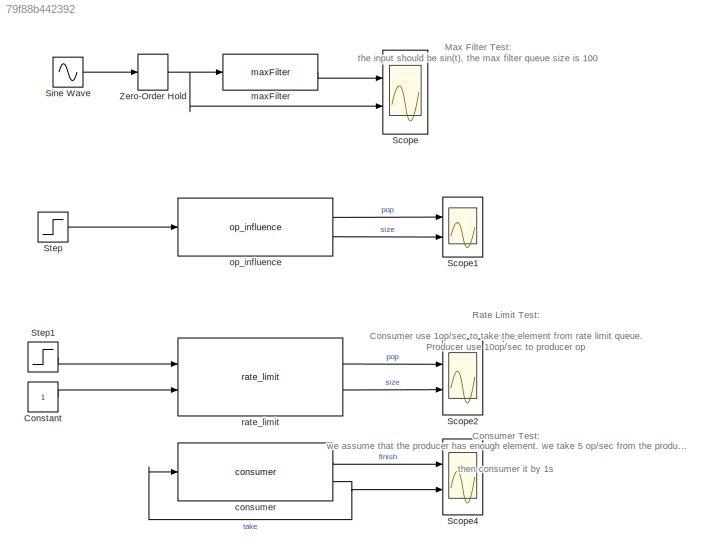
MODEL slx_79f88b442392
KIND model
CONFIG AbsTol = auto
CONFIG EnableMultiTasking = off
CONFIG FixedStep = 0.1
CONFIG MaxStep = auto
CONFIG MinStep = auto
CONFIG RelTol = 1e-3
CONFIG SampleTimeConstraint = Unconstrained
CONFIG SolverName = FixedStepDiscrete
CONFIG StartTime = 0.0
CONFIG StopTime = 60
BLOCK [Constant] Constant
BLOCK [Scope] Scope
  Floating = off
  NumInputPorts = 2
  Ports = [2]
  ScopeSpecificationString = Simulink.scopes.TimeScopeBlockCfg('CurrentConfiguration', extmgr.ConfigurationSet(extmgr.Configuration('Core','General UI',true),extmgr.Configuration('Core','Source UI',true),extmgr.Configuration('Sources','WiredSimulink',true),extmgr.Configuration('Visuals','Time Domain',true,'SerializedDisplays',{struct('MinYLimReal','-1.24999','MaxYLimReal','1.24999','YLabelReal','','MinYLimMag','0.00000','MaxY...<+1347ch>
BLOCK [Scope] Scope1
  Floating = off
  NumInputPorts = 2
  Ports = [2]
  ScopeSpecificationString = Simulink.scopes.TimeScopeBlockCfg('CurrentConfiguration', extmgr.ConfigurationSet(extmgr.Configuration('Core','General UI',true),extmgr.Configuration('Core','Source UI',true),extmgr.Configuration('Sources','WiredSimulink',true,'DataLoggingVariableName','ScopeData1'),extmgr.Configuration('Visuals','Time Domain',true,'SerializedDisplays',{struct('MinYLimReal','-0.05473','MaxYLimReal','1.1114','YLabe...<+1505ch>
BLOCK [Scope] Scope2
  Floating = off
  NumInputPorts = 2
  Ports = [2]
  ScopeSpecificationString = Simulink.scopes.TimeScopeBlockCfg('CurrentConfiguration', extmgr.ConfigurationSet(extmgr.Configuration('Core','General UI',true),extmgr.Configuration('Core','Source UI',true),extmgr.Configuration('Sources','WiredSimulink',true,'DataLoggingVariableName','ScopeData1'),extmgr.Configuration('Visuals','Time Domain',true,'SerializedDisplays',{struct('MinYLimReal','-2.25','MaxYLimReal','16.57701','YLabel...<+1507ch>
BLOCK [Scope] Scope4
  Floating = off
  NumInputPorts = 2
  Ports = [2]
  ScopeSpecificationString = Simulink.scopes.TimeScopeBlockCfg('CurrentConfiguration', extmgr.ConfigurationSet(extmgr.Configuration('Core','General UI',true),extmgr.Configuration('Core','Source UI',true),extmgr.Configuration('Sources','WiredSimulink',true,'DataLoggingVariableName','ScopeData3'),extmgr.Configuration('Visuals','Time Domain',true,'SerializedDisplays',{struct('MinYLimReal','-0.625','MaxYLimReal','5.625','YLabelRe...<+1500ch>
BLOCK [Sin] Sine Wave
  Ports = [0, 1]
  SampleTime = 0
BLOCK [Step] Step
  SampleTime = 0
  Time = 5
BLOCK [Step] Step1
  After = 10
  SampleTime = 0
  Time = 0
BLOCK [ZeroOrderHold] Zero-Order Hold
  SampleTime = -1
BLOCK [Reference] consumer  REF=pingcap/consumer  (lib defined in slx_86c26b565c1c)
  Ports = [1, 2]
  SourceBlock = pingcap/consumer
BLOCK [Reference] maxFilter  REF=pingcap/maxFilter  (lib defined in slx_86c26b565c1c)
  Ports = [1, 1]
  SourceBlock = pingcap/maxFilter
BLOCK [Reference] op_influence  REF=pingcap/op_influence  (lib defined in slx_86c26b565c1c)
  Ports = [1, 2]
  SourceBlock = pingcap/op_influence
BLOCK [Reference] rate_limit  REF=pingcap/rate_limit  (lib defined in slx_86c26b565c1c)
  Ports = [2, 2]
  SourceBlock = pingcap/rate_limit
ANNOTATION (root): Consumer Test: we assume that the producer has enough element. we take 5 op/sec from the producer , then consumer it by 1s
ANNOTATION (root): Max Filter Test: the input should be sin(t), the max filter queue size is 100
ANNOTATION (root): Rate Limit Test: Input: Consumer use 1op/sec to take the element from rate limit queue. Producer use 10op/sec to producer op Ouput: pop: it should be pop take number if it has enough elemment size: the queue size
LINE Constant:1 -> rate_limit:2
LINE Sine Wave:1 -> Zero-Order Hold:1
LINE Step1:1 -> rate_limit:1
LINE Step:1 -> op_influence:1
NET Zero-Order Hold:1 -> Scope:2, maxFilter:1
LINE consumer:1 -> Scope4:1
NET consumer:2 -> Scope4:2, consumer:1
LINE maxFilter:1 -> Scope:1
LINE op_influence:1 -> Scope1:1
LINE op_influence:2 -> Scope1:2
LINE rate_limit:1 -> Scope2:1
LINE rate_limit:2 -> Scope2:2
note: NET lines group one-source signal fan-out (src -> all destinations, sorted); 1:1 wires keep LINE
